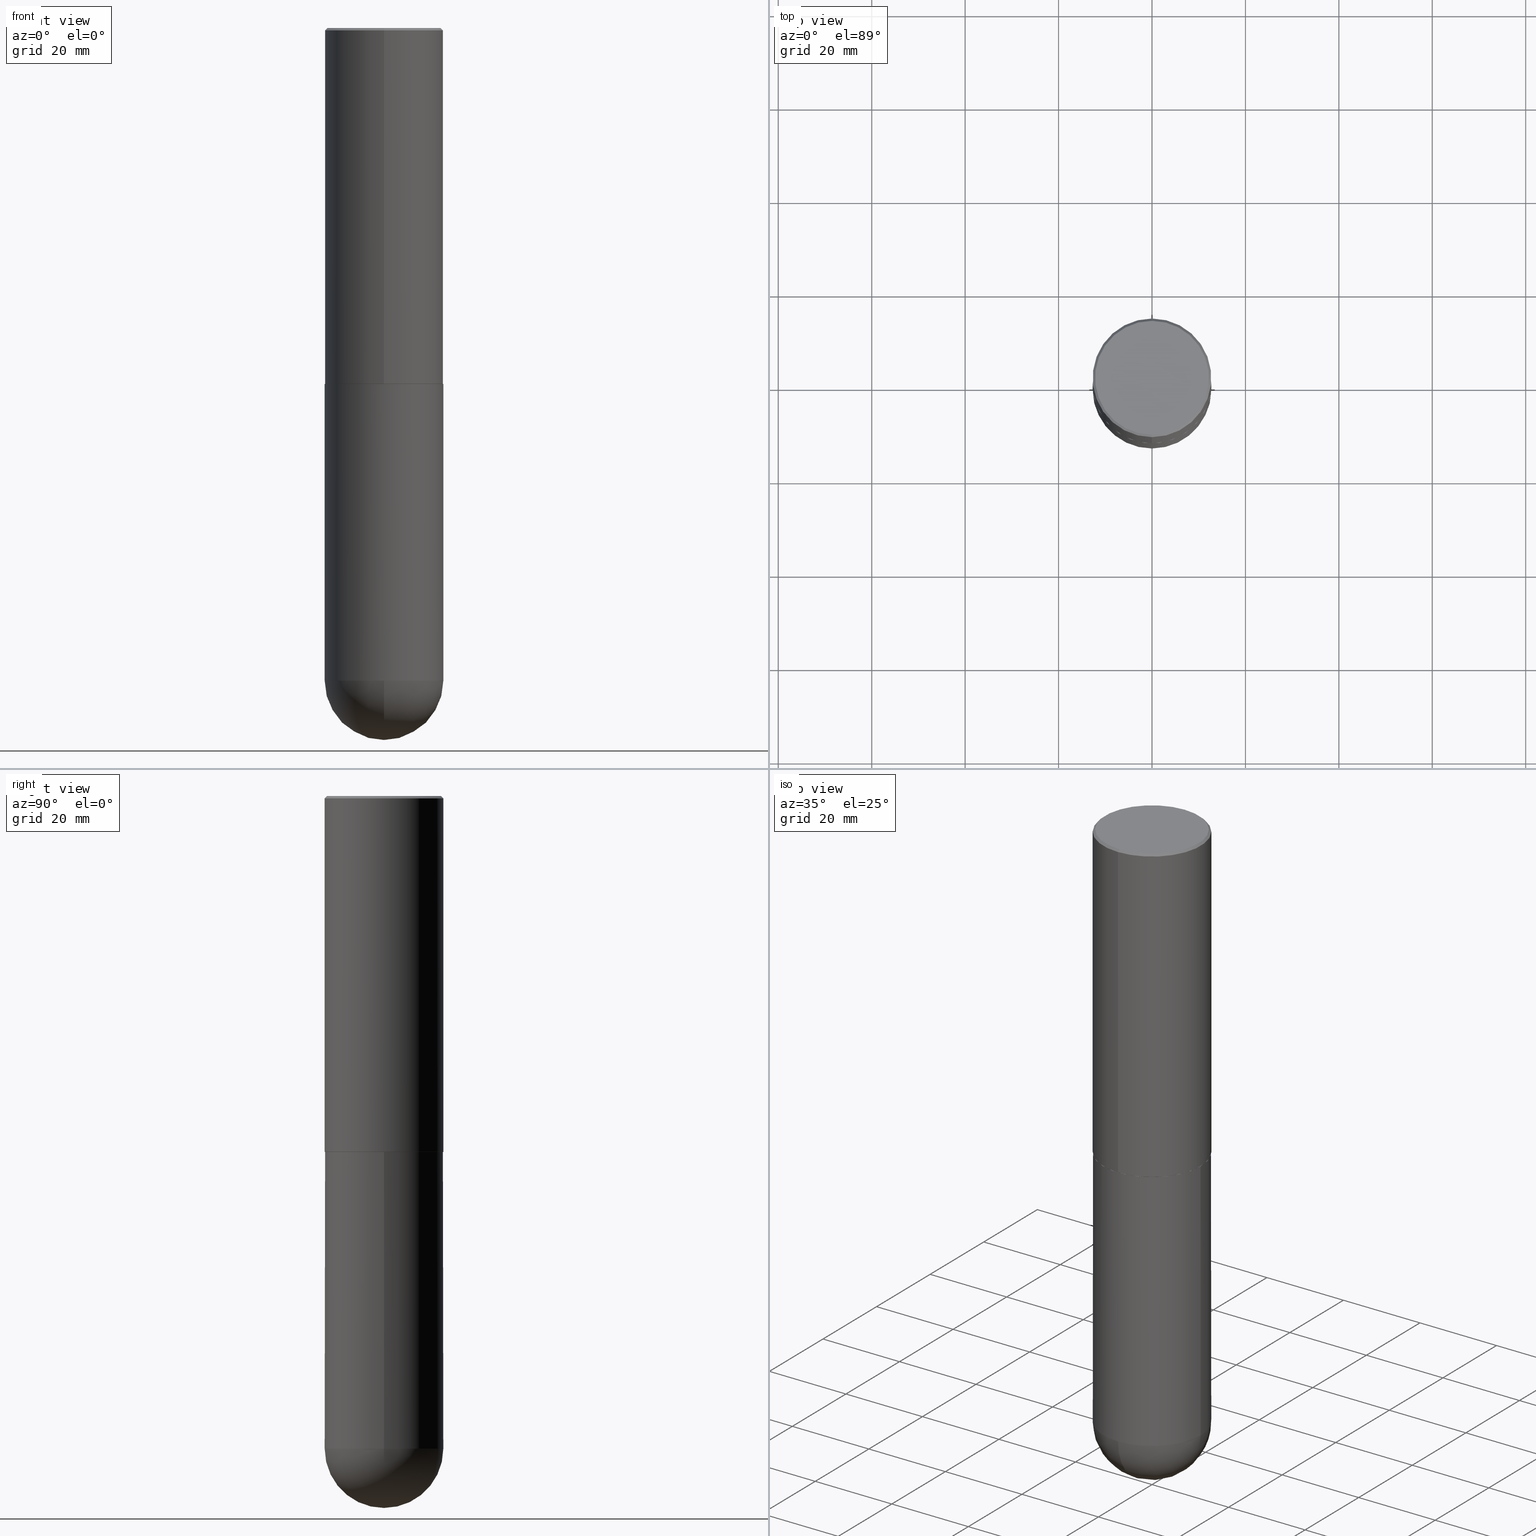
[diagram: canonical four-view strip — front | top / right | iso, engineering-drawing reading convention]
A machine part, canonical four-view strip (front | top / right | iso — engineering-drawing reading convention). The complete STEP part file that produces these views, byte-faithful:
ISO-10303-21;
HEADER;
FILE_DESCRIPTION (( 'STEP AP203' ),
    '1' );
FILE_NAME ('31927.STEP',
    '2024-02-21T17:16:12',
    ( '' ),
    ( '' ),
    'SwSTEP 2.0',
    'SolidWorks 2023',
    '' );
FILE_SCHEMA (( 'CONFIG_CONTROL_DESIGN' ));
ENDSEC;

DATA;
#1 = LINE ( 'NONE', #405, #382 ) ;
#2 = ADVANCED_FACE ( 'NONE', ( #101 ), #67, .F. ) ;
#3 = LINE ( 'NONE', #131, #105 ) ;
#4 = APPROVAL_STATUS ( 'not_yet_approved' ) ;
#5 = EDGE_LOOP ( 'NONE', ( #286, #284, #245, #44 ) ) ;
#6 = CIRCLE ( 'NONE', #272, 0.5000000000000005551 ) ;
#7 = AXIS2_PLACEMENT_3D ( 'NONE', #191, #132, #378 ) ;
#8 = APPROVAL_PERSON_ORGANIZATION ( #106, #149, #112 ) ;
#9 = VERTEX_POINT ( 'NONE', #296 ) ;
#10 = DIRECTION ( 'NONE',  ( -2.445468806185136597E-29, 3.491481338843145583E-15, 1.000000000000000000 ) ) ;
#11 = PRODUCT_DEFINITION ( 'UNKNOWN', '', #154, #244 ) ;
#12 = VERTEX_POINT ( 'NONE', #65 ) ;
#13 = VERTEX_POINT ( 'NONE', #290 ) ;
#14 = VERTEX_POINT ( 'NONE', #198 ) ;
#15 = ORIENTED_EDGE ( 'NONE', *, *, #150, .F. ) ;
#16 =( CONVERSION_BASED_UNIT ( 'INCH', #180 ) LENGTH_UNIT ( ) NAMED_UNIT ( #76 ) );
#17 = CC_DESIGN_PERSON_AND_ORGANIZATION_ASSIGNMENT ( #295, #409, ( #154 ) ) ;
#18 = EDGE_CURVE ( 'NONE', #9, #334, #151, .T. ) ;
#19 = CIRCLE ( 'NONE', #35, 0.5000000000000000000 ) ;
#20 = VECTOR ( 'NONE', #69, 39.37007874015748143 ) ;
#21 = LOCAL_TIME ( 12, 16, 12.00000000000000000, #212 ) ;
#22 = LINE ( 'NONE', #220, #216 ) ;
#23 = EDGE_CURVE ( 'NONE', #325, #38, #22, .T. ) ;
#24 = CARTESIAN_POINT ( 'NONE',  ( 3.545608251442972496E-15, 0.4989999999999895630, -3.000000000000002220 ) ) ;
#25 = DIRECTION ( 'NONE',  ( -2.445691460240369790E-29, 3.491162485563369808E-15, 1.000000000000000000 ) ) ;
#26 = AXIS2_PLACEMENT_3D ( 'NONE', #410, #123, #314 ) ;
#27 = DIRECTION ( 'NONE',  ( -2.445691460240369790E-29, 3.491162485563369808E-15, 1.000000000000000000 ) ) ;
#28 = EDGE_CURVE ( 'NONE', #176, #38, #289, .T. ) ;
#29 = APPROVAL_ROLE ( '' ) ;
#30 = APPROVAL ( #88, 'UNSPECIFIED' ) ;
#31 = CARTESIAN_POINT ( 'NONE',  ( 7.337074380721110490E-29, -1.047348745669011337E-14, -3.000000000000000888 ) ) ;
#32 = EDGE_CURVE ( 'NONE', #143, #239, #219, .T. ) ;
#33 = DIRECTION ( 'NONE',  ( -1.000000000000000000, 6.982962677686265922E-15, -4.883557194083112901E-29 ) ) ;
#34 = MANIFOLD_SOLID_BREP ( 'Body-Move/Copy2[2]', #45 ) ;
#35 = AXIS2_PLACEMENT_3D ( 'NONE', #225, #257, #381 ) ;
#36 =( GEOMETRIC_REPRESENTATION_CONTEXT ( 3 ) GLOBAL_UNCERTAINTY_ASSIGNED_CONTEXT ( ( #397 ) ) GLOBAL_UNIT_ASSIGNED_CONTEXT ( ( #16, #172, #337 ) ) REPRESENTATION_CONTEXT ( 'NONE', 'WORKASPACE' ) );
#37 = DIRECTION ( 'NONE',  ( -2.445691460240369790E-29, 3.491162485563369808E-15, 1.000000000000000000 ) ) ;
#38 = VERTEX_POINT ( 'NONE', #98 ) ;
#39 = CARTESIAN_POINT ( 'NONE',  ( 3.351822085289413464E-15, 0.4800000000000008149, -2.119759816828009615E-15 ) ) ;
#40 = ORIENTED_EDGE ( 'NONE', *, *, #79, .F. ) ;
#41 = CARTESIAN_POINT ( 'NONE',  ( 1.345007843401825128E-28, -1.920314736363730603E-14, -5.500000000000000888 ) ) ;
#42 = MECHANICAL_CONTEXT ( 'NONE', #350, 'mechanical' ) ;
#43 = PERSON ( 'UNSPECIFIED', 'UNSPECIFIED', 'UNSPECIFIED', ('UNSPECIFIED'), ('UNSPECIFIED'), ('UNSPECIFIED') ) ;
#44 = ORIENTED_EDGE ( 'NONE', *, *, #114, .F. ) ;
#45 = CLOSED_SHELL ( 'NONE', ( #327, #240, #97, #135, #336, #148, #2, #279 ) ) ;
#46 = CONICAL_SURFACE ( 'NONE', #317, 0.4989999999999999991, 0.7853981633974824739 ) ;
#47 = EDGE_CURVE ( 'NONE', #12, #13, #6, .T. ) ;
#48 = EDGE_LOOP ( 'NONE', ( #214, #306, #401, #400, #369 ) ) ;
#49 = ORIENTED_EDGE ( 'NONE', *, *, #396, .T. ) ;
#50 = DIRECTION ( 'NONE',  ( -2.445691460240369790E-29, 3.491162485563369808E-15, 1.000000000000000000 ) ) ;
#51 = ORIENTED_EDGE ( 'NONE', *, *, #47, .T. ) ;
#52 = CIRCLE ( 'NONE', #402, 0.5000000000000004441 ) ;
#53 = EDGE_CURVE ( 'NONE', #334, #38, #287, .T. ) ;
#54 = CC_DESIGN_DATE_AND_TIME_ASSIGNMENT ( #292, #311, ( #11 ) ) ;
#55 = CC_DESIGN_DATE_AND_TIME_ASSIGNMENT ( #364, #140, ( #63 ) ) ;
#56 = CARTESIAN_POINT ( 'NONE',  ( 1.311895865610436840E-28, -1.967732973177735475E-14, -5.500000000000000888 ) ) ;
#57 = DIRECTION ( 'NONE',  ( -7.105427357601000281E-15, -1.000000000000000000, 0.000000000000000000 ) ) ;
#58 = PERSON_AND_ORGANIZATION_ROLE ( 'creator' ) ;
#59 = DIRECTION ( 'NONE',  ( -1.000000000000000000, 7.105427357601001070E-15, -4.926315508542082329E-29 ) ) ;
#60 = FACE_OUTER_BOUND ( 'NONE', #113, .T. ) ;
#61 = CIRCLE ( 'NONE', #310, 0.5000000000000000000 ) ;
#62 = CARTESIAN_POINT ( 'NONE',  ( 7.334628689260870918E-29, -1.046999629420454738E-14, -2.999000000000000554 ) ) ;
#63 = SECURITY_CLASSIFICATION ( '', '', #391 ) ;
#64 = DIRECTION ( 'NONE',  ( 1.000000000000000000, -6.982962677686265922E-15, 4.883557194083112340E-29 ) ) ;
#65 = CARTESIAN_POINT ( 'NONE',  ( 1.436307221642642309E-28, -2.139245423122024710E-14, -6.000000000000001776 ) ) ;
#66 = CARTESIAN_POINT ( 'NONE',  ( 2.171782937390169934E-44, -3.100165021248426983E-30, -8.880036475151778487E-16 ) ) ;
#67 = PLANE ( 'NONE',  #181 ) ;
#68 = FACE_OUTER_BOUND ( 'NONE', #359, .T. ) ;
#69 = DIRECTION ( 'NONE',  ( 4.937700262164541731E-15, 0.7071067811865442421, -0.7071067811865507924 ) ) ;
#70 = DIRECTION ( 'NONE',  ( -2.445691460240369509E-29, 3.491162485563369808E-15, 1.000000000000000000 ) ) ;
#71 = AXIS2_PLACEMENT_3D ( 'NONE', #247, #50, #370 ) ;
#72 = DIRECTION ( 'NONE',  ( -2.445468806185136877E-29, 3.491481338843145188E-15, 1.000000000000000000 ) ) ;
#73 = COORDINATED_UNIVERSAL_TIME_OFFSET ( 5, 0, .BEHIND. ) ;
#74 = ORIENTED_EDGE ( 'NONE', *, *, #23, .T. ) ;
#75 = DIRECTION ( 'NONE',  ( -2.445691460240369790E-29, 3.491162485563369808E-15, 1.000000000000000000 ) ) ;
#76 = DIMENSIONAL_EXPONENTS ( 1.000000000000000000, 0.000000000000000000, 0.000000000000000000, 0.000000000000000000, 0.000000000000000000, 0.000000000000000000, 0.000000000000000000 ) ;
#77 = EDGE_LOOP ( 'NONE', ( #193, #49, #133, #185, #107 ) ) ;
#78 = CARTESIAN_POINT ( 'NONE',  ( 0.000000000000000000, 0.000000000000000000, 0.000000000000000000 ) ) ;
#79 = EDGE_CURVE ( 'NONE', #9, #325, #324, .T. ) ;
#80 = CARTESIAN_POINT ( 'NONE',  ( -0.5000000000000000000, -1.128608201128286947E-14, -3.000000000000000444 ) ) ;
#81 = CONICAL_SURFACE ( 'NONE', #283, 0.4989999999999999991, 0.7853981633974824739 ) ;
#82 = VERTEX_POINT ( 'NONE', #126 ) ;
#83 = VERTEX_POINT ( 'NONE', #299 ) ;
#84 = ORIENTED_EDGE ( 'NONE', *, *, #363, .T. ) ;
#85 = CIRCLE ( 'NONE', #338, 0.5000000000000000000 ) ;
#86 = CC_DESIGN_PERSON_AND_ORGANIZATION_ASSIGNMENT ( #221, #58, ( #11 ) ) ;
#87 = AXIS2_PLACEMENT_3D ( 'NONE', #129, #233, #253 ) ;
#88 = APPROVAL_STATUS ( 'not_yet_approved' ) ;
#89 = VECTOR ( 'NONE', #72, 39.37007874015748143 ) ;
#90 = CARTESIAN_POINT ( 'NONE',  ( 0.000000000000000000, 0.000000000000000000, 0.000000000000000000 ) ) ;
#91 = DIRECTION ( 'NONE',  ( -2.445468806185136597E-29, 3.491481338843145583E-15, 1.000000000000000000 ) ) ;
#92 = DIRECTION ( 'NONE',  ( 0.000000000000000000, 0.000000000000000000, 1.000000000000000000 ) ) ;
#93 = DATE_AND_TIME ( #339, #346 ) ;
#94 = AXIS2_PLACEMENT_3D ( 'NONE', #377, #153, #96 ) ;
#95 = AXIS2_PLACEMENT_3D ( 'NONE', #347, #267, #102 ) ;
#96 = DIRECTION ( 'NONE',  ( -6.982962677686265922E-15, -1.000000000000000000, 3.491643216902136408E-15 ) ) ;
#97 = ADVANCED_FACE ( 'NONE', ( #155 ), #307, .T. ) ;
#98 = CARTESIAN_POINT ( 'NONE',  ( -3.430248998885764992E-15, -0.5000000000000001110, -0.01999999999999835937 ) ) ;
#99 = APPROVAL_DATE_TIME ( #93, #30 ) ;
#100 = FACE_OUTER_BOUND ( 'NONE', #77, .T. ) ;
#101 = FACE_OUTER_BOUND ( 'NONE', #141, .T. ) ;
#102 = DIRECTION ( 'NONE',  ( -6.982962677686265922E-15, -1.000000000000000000, 3.284787166730577015E-15 ) ) ;
#103 = SPHERICAL_SURFACE ( 'NONE', #297, 0.5000000000000005551 ) ;
#104 = CARTESIAN_POINT ( 'NONE',  ( 1.345007843401825128E-28, -1.920314736363730603E-14, -5.500000000000000888 ) ) ;
#105 = VECTOR ( 'NONE', #268, 39.37007874015748143 ) ;
#106 = PERSON_AND_ORGANIZATION ( #43, #142 ) ;
#107 = ORIENTED_EDGE ( 'NONE', *, *, #150, .T. ) ;
#108 = PERSON_AND_ORGANIZATION ( #43, #142 ) ;
#109 = ORIENTED_EDGE ( 'NONE', *, *, #265, .F. ) ;
#110 = VECTOR ( 'NONE', #127, 39.37007874015748143 ) ;
#111 = AXIS2_PLACEMENT_3D ( 'NONE', #318, #37, #164 ) ;
#112 = APPROVAL_ROLE ( '' ) ;
#113 = EDGE_LOOP ( 'NONE', ( #309, #51, #281, #361 ) ) ;
#114 = EDGE_CURVE ( 'NONE', #215, #325, #1, .T. ) ;
#115 = ORIENTED_EDGE ( 'NONE', *, *, #130, .T. ) ;
#116 = ORIENTED_EDGE ( 'NONE', *, *, #323, .T. ) ;
#117 = CIRCLE ( 'NONE', #345, 0.4800000000000008149 ) ;
#118 = EDGE_CURVE ( 'NONE', #207, #14, #19, .T. ) ;
#119 = AXIS2_PLACEMENT_3D ( 'NONE', #388, #264, #230 ) ;
#120 = PRODUCT ( '31927', '31927', '', ( #42 ) ) ;
#121 = DIRECTION ( 'NONE',  ( -4.937700262164715281E-15, -0.7071067811865691111, 0.7071067811865257013 ) ) ;
#122 = ORIENTED_EDGE ( 'NONE', *, *, #18, .F. ) ;
#123 = DIRECTION ( 'NONE',  ( -2.445468806185136597E-29, 3.491481338843145583E-15, 1.000000000000000000 ) ) ;
#124 = EDGE_LOOP ( 'NONE', ( #179, #304, #404, #368 ) ) ;
#125 = DIRECTION ( 'NONE',  ( -6.982962677686265133E-15, -1.000000000000000000, 3.278217592397113101E-15 ) ) ;
#126 = CARTESIAN_POINT ( 'NONE',  ( 0.5000000000000000000, -1.833027702892651007E-14, -5.500000000000000888 ) ) ;
#127 = DIRECTION ( 'NONE',  ( -4.851104656540957964E-15, -0.7071067811865491270, -0.7071067811865459074 ) ) ;
#128 = FACE_OUTER_BOUND ( 'NONE', #394, .T. ) ;
#129 = CARTESIAN_POINT ( 'NONE',  ( 7.336406418555409790E-29, -1.047444401652943635E-14, -3.000000000000000444 ) ) ;
#130 = EDGE_CURVE ( 'NONE', #14, #207, #282, .T. ) ;
#131 = CARTESIAN_POINT ( 'NONE',  ( -0.5000000000000000000, 3.552713678800500929E-15, -2.459467545127452891E-29 ) ) ;
#132 = DIRECTION ( 'NONE',  ( 2.445691460240369790E-29, -3.491162485563369808E-15, -1.000000000000000000 ) ) ;
#133 = ORIENTED_EDGE ( 'NONE', *, *, #130, .F. ) ;
#134 = CONICAL_SURFACE ( 'NONE', #7, 0.5000000000000000000, 0.7853981633974471688 ) ;
#135 = ADVANCED_FACE ( 'NONE', ( #354 ), #134, .T. ) ;
#136 = ORIENTED_EDGE ( 'NONE', *, *, #168, .F. ) ;
#137 = FACE_OUTER_BOUND ( 'NONE', #348, .T. ) ;
#138 = ORIENTED_EDGE ( 'NONE', *, *, #18, .T. ) ;
#139 = DIRECTION ( 'NONE',  ( -2.445468806185136597E-29, 3.491481338843145583E-15, 1.000000000000000000 ) ) ;
#140 = DATE_TIME_ROLE ( 'classification_date' ) ;
#141 = EDGE_LOOP ( 'NONE', ( #303, #237 ) ) ;
#142 = ORGANIZATION ( 'UNSPECIFIED', 'UNSPECIFIED', '' ) ;
#143 = VERTEX_POINT ( 'NONE', #390 ) ;
#144 = PERSON_AND_ORGANIZATION ( #43, #142 ) ;
#145 = EDGE_LOOP ( 'NONE', ( #305, #329, #170, #258 ) ) ;
#146 = AXIS2_PLACEMENT_3D ( 'NONE', #62, #312, #411 ) ;
#147 = CIRCLE ( 'NONE', #182, 0.5000000000000000000 ) ;
#148 = ADVANCED_FACE ( 'NONE', ( #201 ), #81, .T. ) ;
#149 = APPROVAL ( #4, 'UNSPECIFIED' ) ;
#150 = EDGE_CURVE ( 'NONE', #82, #143, #61, .T. ) ;
#151 = LINE ( 'NONE', #352, #187 ) ;
#152 = PERSON_AND_ORGANIZATION_ROLE ( 'classification_officer' ) ;
#153 = DIRECTION ( 'NONE',  ( -2.445691460240369790E-29, 3.491162485563369808E-15, 1.000000000000000000 ) ) ;
#154 = PRODUCT_DEFINITION_FORMATION_WITH_SPECIFIED_SOURCE ( 'ANY', '', #120, .NOT_KNOWN. ) ;
#155 = FACE_OUTER_BOUND ( 'NONE', #124, .T. ) ;
#156 = CALENDAR_DATE ( 2024, 21, 2 ) ;
#157 = DIRECTION ( 'NONE',  ( -2.445691460240369790E-29, 3.491162485563369808E-15, 1.000000000000000000 ) ) ;
#158 = DIRECTION ( 'NONE',  ( 2.438088387897960049E-29, -3.491481338843145188E-15, -1.000000000000000000 ) ) ;
#159 = APPROVAL_DATE_TIME ( #376, #357 ) ;
#160 = CYLINDRICAL_SURFACE ( 'NONE', #26, 0.5000000000000000000 ) ;
#161 = DIRECTION ( 'NONE',  ( -6.982962677686265922E-15, -1.000000000000000000, 3.491162485563369808E-15 ) ) ;
#162 = CC_DESIGN_SECURITY_CLASSIFICATION ( #63, ( #154 ) ) ;
#163 = APPROVAL_DATE_TIME ( #203, #149 ) ;
#164 = DIRECTION ( 'NONE',  ( -6.982962677686265922E-15, -1.000000000000000000, 3.491643216902136408E-15 ) ) ;
#165 = CALENDAR_DATE ( 2024, 21, 2 ) ;
#166 = ORIENTED_EDGE ( 'NONE', *, *, #79, .T. ) ;
#167 = CARTESIAN_POINT ( 'NONE',  ( -3.491481338843062752E-15, -0.5000000000000108802, -2.998999999999998778 ) ) ;
#168 = EDGE_CURVE ( 'NONE', #13, #82, #147, .T. ) ;
#169 = EDGE_LOOP ( 'NONE', ( #109, #84, #275, #40 ) ) ;
#170 = ORIENTED_EDGE ( 'NONE', *, *, #371, .T. ) ;
#171 = DIRECTION ( 'NONE',  ( 1.000000000000000000, -6.982962677686270655E-15, 0.000000000000000000 ) ) ;
#172 =( NAMED_UNIT ( * ) PLANE_ANGLE_UNIT ( ) SI_UNIT ( $, .RADIAN. ) );
#173 = EDGE_LOOP ( 'NONE', ( #116, #278 ) ) ;
#174 = FACE_OUTER_BOUND ( 'NONE', #48, .T. ) ;
#175 = MANIFOLD_SOLID_BREP ( 'Body-Move/Copy2[1]', #392 ) ;
#176 = VERTEX_POINT ( 'NONE', #285 ) ;
#177 = PRODUCT_RELATED_PRODUCT_CATEGORY ( 'detail', '', ( #120 ) ) ;
#178 = LOCAL_TIME ( 12, 16, 12.00000000000000000, #342 ) ;
#179 = ORIENTED_EDGE ( 'NONE', *, *, #218, .F. ) ;
#180 = LENGTH_MEASURE_WITH_UNIT ( LENGTH_MEASURE( 0.02539999999999999897 ), #246 );
#181 = AXIS2_PLACEMENT_3D ( 'NONE', #389, #70, #188 ) ;
#182 = AXIS2_PLACEMENT_3D ( 'NONE', #41, #139, #171 ) ;
#183 = LINE ( 'NONE', #24, #217 ) ;
#184 = DIRECTION ( 'NONE',  ( 1.000000000000000000, 0.000000000000000000, 0.000000000000000000 ) ) ;
#185 = ORIENTED_EDGE ( 'NONE', *, *, #277, .F. ) ;
#186 = LINE ( 'NONE', #355, #89 ) ;
#187 = VECTOR ( 'NONE', #226, 39.37007874015748143 ) ;
#188 = DIRECTION ( 'NONE',  ( -6.982962677686265922E-15, -1.000000000000000000, 3.491162485563369808E-15 ) ) ;
#189 = CC_DESIGN_APPROVAL ( #30, ( #154 ) ) ;
#190 = CARTESIAN_POINT ( 'NONE',  ( 1.311895865610436840E-28, -1.967732973177735475E-14, -5.500000000000000888 ) ) ;
#191 = CARTESIAN_POINT ( 'NONE',  ( 4.891382920480766589E-31, -6.982324971126776298E-17, -0.02000000000000010797 ) ) ;
#192 = ADVANCED_BREP_SHAPE_REPRESENTATION ( '31927', ( #175, #34, #200 ), #36 ) ;
#193 = ORIENTED_EDGE ( 'NONE', *, *, #32, .T. ) ;
#194 = PRODUCT_DEFINITION_SHAPE ( 'NONE', 'NONE',  #11 ) ;
#195 = DIRECTION ( 'NONE',  ( 6.982962677686265922E-15, 1.000000000000000000, 0.000000000000000000 ) ) ;
#196 = CARTESIAN_POINT ( 'NONE',  ( 7.334628689260870918E-29, -1.046999629420454738E-14, -2.999000000000000554 ) ) ;
#197 = CARTESIAN_POINT ( 'NONE',  ( 0.000000000000000000, 0.000000000000000000, 0.000000000000000000 ) ) ;
#198 = CARTESIAN_POINT ( 'NONE',  ( 0.5000000000000000000, -1.396592535537257129E-14, -3.000000000000000444 ) ) ;
#199 = DIRECTION ( 'NONE',  ( 1.000000000000000000, -6.982962677686270655E-15, 0.000000000000000000 ) ) ;
#200 = AXIS2_PLACEMENT_3D ( 'NONE', #90, #92, #184 ) ;
#201 = FACE_OUTER_BOUND ( 'NONE', #169, .T. ) ;
#202 = FACE_OUTER_BOUND ( 'NONE', #173, .T. ) ;
#203 = DATE_AND_TIME ( #280, #249 ) ;
#204 = VERTEX_POINT ( 'NONE', #206 ) ;
#205 = CARTESIAN_POINT ( 'NONE',  ( 3.491481338843133355E-15, 0.4999999999999999445, -0.02000000000000185310 ) ) ;
#206 = CARTESIAN_POINT ( 'NONE',  ( 3.421651712066273607E-15, 0.4800000000000008149, -2.563761640585598047E-15 ) ) ;
#207 = VERTEX_POINT ( 'NONE', #80 ) ;
#208 = CARTESIAN_POINT ( 'NONE',  ( -3.484498376165373188E-15, -0.4990000000000104352, -2.999999999999999112 ) ) ;
#209 = ADVANCED_FACE ( 'NONE', ( #174 ), #333, .T. ) ;
#210 = CC_DESIGN_PERSON_AND_ORGANIZATION_ASSIGNMENT ( #262, #385, ( #154 ) ) ;
#211 = CIRCLE ( 'NONE', #288, 0.4989999999999999991 ) ;
#212 = COORDINATED_UNIVERSAL_TIME_OFFSET ( 5, 0, .BEHIND. ) ;
#213 = ORIENTED_EDGE ( 'NONE', *, *, #53, .F. ) ;
#214 = ORIENTED_EDGE ( 'NONE', *, *, #396, .F. ) ;
#215 = VERTEX_POINT ( 'NONE', #208 ) ;
#216 = VECTOR ( 'NONE', #25, 39.37007874015748143 ) ;
#217 = VECTOR ( 'NONE', #222, 39.37007874015748854 ) ;
#218 = EDGE_CURVE ( 'NONE', #176, #204, #252, .T. ) ;
#219 = CIRCLE ( 'NONE', #251, 0.5000000000000000000 ) ;
#220 = CARTESIAN_POINT ( 'NONE',  ( -3.491481338843134539E-15, -0.5000000000000002220, 1.745581242781685693E-15 ) ) ;
#221 = PERSON_AND_ORGANIZATION ( #43, #142 ) ;
#222 = DIRECTION ( 'NONE',  ( 5.024295867788231995E-15, 0.7071067811865739960, 0.7071067811865208164 ) ) ;
#223 = COORDINATED_UNIVERSAL_TIME_OFFSET ( 5, 0, .BEHIND. ) ;
#224 = DIRECTION ( 'NONE',  ( 6.982962677686265922E-15, 1.000000000000000000, -4.370956789862816416E-15 ) ) ;
#225 = CARTESIAN_POINT ( 'NONE',  ( 7.336406418555409790E-29, -1.047444401652943635E-14, -3.000000000000000444 ) ) ;
#226 = DIRECTION ( 'NONE',  ( -2.445691460240369790E-29, 3.491162485563369808E-15, 1.000000000000000000 ) ) ;
#227 = AXIS2_PLACEMENT_3D ( 'NONE', #256, #33, #224 ) ;
#228 = CYLINDRICAL_SURFACE ( 'NONE', #326, 0.5000000000000002220 ) ;
#229 = DIRECTION ( 'NONE',  ( 6.982962677686265922E-15, 1.000000000000000000, -4.370956789862816416E-15 ) ) ;
#230 = DIRECTION ( 'NONE',  ( 6.982962677686265922E-15, 1.000000000000000000, -3.491643216902136408E-15 ) ) ;
#231 = ADVANCED_FACE ( 'NONE', ( #137 ), #322, .F. ) ;
#232 = LINE ( 'NONE', #353, #20 ) ;
#233 = DIRECTION ( 'NONE',  ( -2.445468806185136597E-29, 3.491481338843145583E-15, 1.000000000000000000 ) ) ;
#234 = APPLICATION_PROTOCOL_DEFINITION ( 'international standard', 'config_control_design', 1994, #350 ) ;
#235 = DIRECTION ( 'NONE',  ( 2.445691460240369509E-29, -3.491162485563369808E-15, -1.000000000000000000 ) ) ;
#236 = AXIS2_PLACEMENT_3D ( 'NONE', #78, #10, #274 ) ;
#237 = ORIENTED_EDGE ( 'NONE', *, *, #363, .F. ) ;
#238 = APPLICATION_PROTOCOL_DEFINITION ( 'international standard', 'config_control_design', 1994, #362 ) ;
#239 = VERTEX_POINT ( 'NONE', #341 ) ;
#240 = ADVANCED_FACE ( 'NONE', ( #68 ), #254, .T. ) ;
#241 = ORIENTED_EDGE ( 'NONE', *, *, #118, .T. ) ;
#242 = AXIS2_PLACEMENT_3D ( 'NONE', #39, #235, #386 ) ;
#243 = CC_DESIGN_APPROVAL ( #149, ( #63 ) ) ;
#244 = DESIGN_CONTEXT ( 'detailed design', #362, 'design' ) ;
#245 = ORIENTED_EDGE ( 'NONE', *, *, #332, .F. ) ;
#246 =( LENGTH_UNIT ( ) NAMED_UNIT ( * ) SI_UNIT ( $, .METRE. ) );
#247 = CARTESIAN_POINT ( 'NONE',  ( 2.171782937390169934E-44, -3.100165021248426983E-30, -8.880036475151778487E-16 ) ) ;
#248 = EDGE_CURVE ( 'NONE', #12, #143, #412, .T. ) ;
#249 = LOCAL_TIME ( 12, 16, 12.00000000000000000, #73 ) ;
#250 = APPROVAL_STATUS ( 'not_yet_approved' ) ;
#251 = AXIS2_PLACEMENT_3D ( 'NONE', #266, #91, #260 ) ;
#252 = CIRCLE ( 'NONE', #71, 0.4800000000000008149 ) ;
#253 = DIRECTION ( 'NONE',  ( 1.000000000000000000, -6.982962677686266711E-15, 0.000000000000000000 ) ) ;
#254 = CYLINDRICAL_SURFACE ( 'NONE', #383, 0.5000000000000002220 ) ;
#255 = APPROVAL_ROLE ( '' ) ;
#256 = CARTESIAN_POINT ( 'NONE',  ( 1.311895865610436840E-28, -1.967732973177735475E-14, -5.500000000000000888 ) ) ;
#257 = DIRECTION ( 'NONE',  ( -2.445468806185136597E-29, 3.491481338843145583E-15, 1.000000000000000000 ) ) ;
#258 = ORIENTED_EDGE ( 'NONE', *, *, #53, .T. ) ;
#259 = DIRECTION ( 'NONE',  ( -1.000000000000000000, 6.982962677686265922E-15, -4.876176775795935793E-29 ) ) ;
#260 = DIRECTION ( 'NONE',  ( 1.000000000000000000, -6.982962677686270655E-15, 0.000000000000000000 ) ) ;
#261 = CIRCLE ( 'NONE', #111, 0.5000000000000000000 ) ;
#262 = PERSON_AND_ORGANIZATION ( #43, #142 ) ;
#263 = DIRECTION ( 'NONE',  ( -2.445691460240369790E-29, 3.491162485563369808E-15, 1.000000000000000000 ) ) ;
#264 = DIRECTION ( 'NONE',  ( 2.445691460240369790E-29, -3.491162485563369808E-15, -1.000000000000000000 ) ) ;
#265 = EDGE_CURVE ( 'NONE', #83, #9, #183, .T. ) ;
#266 = CARTESIAN_POINT ( 'NONE',  ( 1.345007843401825128E-28, -1.920314736363730603E-14, -5.500000000000000888 ) ) ;
#267 = DIRECTION ( 'NONE',  ( -2.445691460240369790E-29, 3.491162485563369808E-15, 1.000000000000000000 ) ) ;
#268 = DIRECTION ( 'NONE',  ( -2.445468806185136877E-29, 3.491481338843145188E-15, 1.000000000000000000 ) ) ;
#269 = DIRECTION ( 'NONE',  ( -2.445691460240369790E-29, 3.491162485563369808E-15, 1.000000000000000000 ) ) ;
#270 = ORIENTED_EDGE ( 'NONE', *, *, #332, .T. ) ;
#271 = FACE_OUTER_BOUND ( 'NONE', #5, .T. ) ;
#272 = AXIS2_PLACEMENT_3D ( 'NONE', #340, #59, #57 ) ;
#273 = CIRCLE ( 'NONE', #95, 0.4989999999999999991 ) ;
#274 = DIRECTION ( 'NONE',  ( 1.000000000000000000, -6.982962677686266711E-15, 4.876176775795935793E-29 ) ) ;
#275 = ORIENTED_EDGE ( 'NONE', *, *, #114, .T. ) ;
#276 = CARTESIAN_POINT ( 'NONE',  ( 3.491481338843206325E-15, 0.4999999999999895639, -3.000000000000001332 ) ) ;
#277 = EDGE_CURVE ( 'NONE', #82, #14, #186, .T. ) ;
#278 = ORIENTED_EDGE ( 'NONE', *, *, #218, .T. ) ;
#279 = ADVANCED_FACE ( 'NONE', ( #202 ), #320, .F. ) ;
#280 = CALENDAR_DATE ( 2024, 21, 2 ) ;
#281 = ORIENTED_EDGE ( 'NONE', *, *, #372, .F. ) ;
#282 = CIRCLE ( 'NONE', #87, 0.5000000000000000000 ) ;
#283 = AXIS2_PLACEMENT_3D ( 'NONE', #319, #269, #344 ) ;
#284 = ORIENTED_EDGE ( 'NONE', *, *, #265, .T. ) ;
#285 = CARTESIAN_POINT ( 'NONE',  ( -3.361644018908052422E-15, -0.4800000000000008149, 7.877543455552426451E-16 ) ) ;
#286 = ORIENTED_EDGE ( 'NONE', *, *, #367, .T. ) ;
#287 = CIRCLE ( 'NONE', #94, 0.5000000000000000000 ) ;
#288 = AXIS2_PLACEMENT_3D ( 'NONE', #298, #294, #387 ) ;
#289 = LINE ( 'NONE', #408, #110 ) ;
#290 = CARTESIAN_POINT ( 'NONE',  ( -3.552713678800369978E-15, -0.5000000000000196509, -5.499999999999999112 ) ) ;
#291 = CALENDAR_DATE ( 2024, 21, 2 ) ;
#292 = DATE_AND_TIME ( #156, #178 ) ;
#293 = CC_DESIGN_PERSON_AND_ORGANIZATION_ASSIGNMENT ( #144, #152, ( #63 ) ) ;
#294 = DIRECTION ( 'NONE',  ( -2.445691460240369790E-29, 3.491162485563369808E-15, 1.000000000000000000 ) ) ;
#295 = PERSON_AND_ORGANIZATION ( #43, #142 ) ;
#296 = CARTESIAN_POINT ( 'NONE',  ( 3.552713678800539584E-15, 0.4999999999999900080, -2.999000000000001886 ) ) ;
#297 = AXIS2_PLACEMENT_3D ( 'NONE', #190, #380, #229 ) ;
#298 = CARTESIAN_POINT ( 'NONE',  ( 7.337074380721110490E-29, -1.047348745669011337E-14, -3.000000000000000888 ) ) ;
#299 = CARTESIAN_POINT ( 'NONE',  ( 3.549160965121774973E-15, 0.4989999999999895630, -3.000000000000002220 ) ) ;
#300 = CARTESIAN_POINT ( 'NONE',  ( 1.345007843401825128E-28, -1.920314736363730603E-14, -5.500000000000000888 ) ) ;
#301 = PERSON_AND_ORGANIZATION_ROLE ( 'design_owner' ) ;
#302 = ADVANCED_FACE ( 'NONE', ( #128 ), #103, .T. ) ;
#303 = ORIENTED_EDGE ( 'NONE', *, *, #367, .F. ) ;
#304 = ORIENTED_EDGE ( 'NONE', *, *, #28, .T. ) ;
#305 = ORIENTED_EDGE ( 'NONE', *, *, #28, .F. ) ;
#306 = ORIENTED_EDGE ( 'NONE', *, *, #372, .T. ) ;
#307 = CONICAL_SURFACE ( 'NONE', #119, 0.5000000000000000000, 0.7853981633974471688 ) ;
#308 = LOCAL_TIME ( 12, 16, 12.00000000000000000, #223 ) ;
#309 = ORIENTED_EDGE ( 'NONE', *, *, #248, .F. ) ;
#310 = AXIS2_PLACEMENT_3D ( 'NONE', #104, #313, #360 ) ;
#311 = DATE_TIME_ROLE ( 'creation_date' ) ;
#312 = DIRECTION ( 'NONE',  ( -2.445691460240369790E-29, 3.491162485563369808E-15, 1.000000000000000000 ) ) ;
#313 = DIRECTION ( 'NONE',  ( -2.445468806185136597E-29, 3.491481338843145583E-15, 1.000000000000000000 ) ) ;
#314 = DIRECTION ( 'NONE',  ( 1.000000000000000000, -6.982962677686266711E-15, 4.876176775795935793E-29 ) ) ;
#315 = ORIENTED_EDGE ( 'NONE', *, *, #23, .F. ) ;
#316 = CARTESIAN_POINT ( 'NONE',  ( 0.000000000000000000, 0.000000000000000000, 0.000000000000000000 ) ) ;
#317 = AXIS2_PLACEMENT_3D ( 'NONE', #31, #263, #395 ) ;
#318 = CARTESIAN_POINT ( 'NONE',  ( 4.891382920480766589E-31, -6.982324971126776298E-17, -0.02000000000000010797 ) ) ;
#319 = CARTESIAN_POINT ( 'NONE',  ( 7.337074380721110490E-29, -1.047348745669011337E-14, -3.000000000000000888 ) ) ;
#320 = PLANE ( 'NONE',  #242 ) ;
#321 = SPHERICAL_SURFACE ( 'NONE', #227, 0.5000000000000005551 ) ;
#322 = PLANE ( 'NONE',  #366 ) ;
#323 = EDGE_CURVE ( 'NONE', #204, #176, #117, .T. ) ;
#324 = CIRCLE ( 'NONE', #146, 0.5000000000000004441 ) ;
#325 = VERTEX_POINT ( 'NONE', #167 ) ;
#326 = AXIS2_PLACEMENT_3D ( 'NONE', #316, #27, #161 ) ;
#327 = ADVANCED_FACE ( 'NONE', ( #271 ), #46, .T. ) ;
#328 = ADVANCED_FACE ( 'NONE', ( #60 ), #321, .T. ) ;
#329 = ORIENTED_EDGE ( 'NONE', *, *, #323, .F. ) ;
#330 = ADVANCED_FACE ( 'NONE', ( #100 ), #160, .T. ) ;
#331 = EDGE_LOOP ( 'NONE', ( #122, #166, #74, #213 ) ) ;
#332 = EDGE_CURVE ( 'NONE', #325, #9, #52, .T. ) ;
#333 = CYLINDRICAL_SURFACE ( 'NONE', #236, 0.5000000000000000000 ) ;
#334 = VERTEX_POINT ( 'NONE', #205 ) ;
#335 = APPROVAL_PERSON_ORGANIZATION ( #108, #357, #29 ) ;
#336 = ADVANCED_FACE ( 'NONE', ( #343 ), #228, .T. ) ;
#337 =( NAMED_UNIT ( * ) SI_UNIT ( $, .STERADIAN. ) SOLID_ANGLE_UNIT ( ) );
#338 = AXIS2_PLACEMENT_3D ( 'NONE', #300, #358, #199 ) ;
#339 = CALENDAR_DATE ( 2024, 21, 2 ) ;
#340 = CARTESIAN_POINT ( 'NONE',  ( 1.311895865610436840E-28, -1.967732973177735475E-14, -5.500000000000000888 ) ) ;
#341 = CARTESIAN_POINT ( 'NONE',  ( -0.5000000000000000000, -1.128608201128287263E-14, -5.500000000000000888 ) ) ;
#342 = COORDINATED_UNIVERSAL_TIME_OFFSET ( 5, 0, .BEHIND. ) ;
#343 = FACE_OUTER_BOUND ( 'NONE', #331, .T. ) ;
#344 = DIRECTION ( 'NONE',  ( -6.982962677686265922E-15, -1.000000000000000000, 3.284787166730577015E-15 ) ) ;
#345 = AXIS2_PLACEMENT_3D ( 'NONE', #66, #157, #407 ) ;
#346 = LOCAL_TIME ( 12, 16, 12.00000000000000000, #379 ) ;
#347 = CARTESIAN_POINT ( 'NONE',  ( 7.337074380721110490E-29, -1.047348745669011337E-14, -3.000000000000000888 ) ) ;
#348 = EDGE_LOOP ( 'NONE', ( #115, #241 ) ) ;
#349 = DIRECTION ( 'NONE',  ( -6.982962677686265922E-15, -1.000000000000000000, 3.491162485563369808E-15 ) ) ;
#350 = APPLICATION_CONTEXT ( 'configuration controlled 3d designs of mechanical parts and assemblies' ) ;
#351 = PERSON_AND_ORGANIZATION ( #43, #142 ) ;
#352 = CARTESIAN_POINT ( 'NONE',  ( 3.552713678800501718E-15, 0.5000000000000002220, -1.745581242781685693E-15 ) ) ;
#353 = CARTESIAN_POINT ( 'NONE',  ( 3.491481338843133355E-15, 0.4999999999999999445, -0.02000000000000185310 ) ) ;
#354 = FACE_OUTER_BOUND ( 'NONE', #145, .T. ) ;
#355 = CARTESIAN_POINT ( 'NONE',  ( 0.5000000000000000000, -3.491481338843133355E-15, 2.438088387897967896E-29 ) ) ;
#356 = CC_DESIGN_APPROVAL ( #357, ( #11 ) ) ;
#357 = APPROVAL ( #250, 'UNSPECIFIED' ) ;
#358 = DIRECTION ( 'NONE',  ( -2.445468806185136597E-29, 3.491481338843145583E-15, 1.000000000000000000 ) ) ;
#359 = EDGE_LOOP ( 'NONE', ( #270, #138, #365, #315 ) ) ;
#360 = DIRECTION ( 'NONE',  ( 1.000000000000000000, -6.982962677686270655E-15, 0.000000000000000000 ) ) ;
#361 = ORIENTED_EDGE ( 'NONE', *, *, #32, .F. ) ;
#362 = APPLICATION_CONTEXT ( 'configuration controlled 3d designs of mechanical parts and assemblies' ) ;
#363 = EDGE_CURVE ( 'NONE', #83, #215, #211, .T. ) ;
#364 = DATE_AND_TIME ( #165, #21 ) ;
#365 = ORIENTED_EDGE ( 'NONE', *, *, #375, .F. ) ;
#366 = AXIS2_PLACEMENT_3D ( 'NONE', #276, #158, #259 ) ;
#367 = EDGE_CURVE ( 'NONE', #215, #83, #273, .T. ) ;
#368 = ORIENTED_EDGE ( 'NONE', *, *, #371, .F. ) ;
#369 = ORIENTED_EDGE ( 'NONE', *, *, #118, .F. ) ;
#370 = DIRECTION ( 'NONE',  ( -6.982962677686265922E-15, -1.000000000000000000, 3.491162485563369808E-15 ) ) ;
#371 = EDGE_CURVE ( 'NONE', #204, #334, #232, .T. ) ;
#372 = EDGE_CURVE ( 'NONE', #239, #13, #85, .T. ) ;
#373 = AXIS2_PLACEMENT_3D ( 'NONE', #56, #64, #195 ) ;
#374 = CC_DESIGN_PERSON_AND_ORGANIZATION_ASSIGNMENT ( #351, #301, ( #120 ) ) ;
#375 = EDGE_CURVE ( 'NONE', #38, #334, #261, .T. ) ;
#376 = DATE_AND_TIME ( #291, #308 ) ;
#377 = CARTESIAN_POINT ( 'NONE',  ( 4.891382920480766589E-31, -6.982324971126776298E-17, -0.02000000000000010797 ) ) ;
#378 = DIRECTION ( 'NONE',  ( 6.982962677686265922E-15, 1.000000000000000000, -3.491643216902136408E-15 ) ) ;
#379 = COORDINATED_UNIVERSAL_TIME_OFFSET ( 5, 0, .BEHIND. ) ;
#380 = DIRECTION ( 'NONE',  ( -1.000000000000000000, 6.982962677686265922E-15, -4.883557194083112901E-29 ) ) ;
#381 = DIRECTION ( 'NONE',  ( 1.000000000000000000, -6.982962677686266711E-15, 0.000000000000000000 ) ) ;
#382 = VECTOR ( 'NONE', #121, 39.37007874015748854 ) ;
#383 = AXIS2_PLACEMENT_3D ( 'NONE', #197, #384, #349 ) ;
#384 = DIRECTION ( 'NONE',  ( -2.445691460240369790E-29, 3.491162485563369808E-15, 1.000000000000000000 ) ) ;
#385 = PERSON_AND_ORGANIZATION_ROLE ( 'design_supplier' ) ;
#386 = DIRECTION ( 'NONE',  ( 6.982962677686265922E-15, 1.000000000000000000, -3.491162485563369808E-15 ) ) ;
#387 = DIRECTION ( 'NONE',  ( -6.982962677686265922E-15, -1.000000000000000000, 3.284787166730577015E-15 ) ) ;
#388 = CARTESIAN_POINT ( 'NONE',  ( 4.891382920480766589E-31, -6.982324971126776298E-17, -0.02000000000000010797 ) ) ;
#389 = CARTESIAN_POINT ( 'NONE',  ( 7.337074380721109369E-29, -1.047348745669011179E-14, -3.000000000000000444 ) ) ;
#390 = CARTESIAN_POINT ( 'NONE',  ( 3.491481338843267462E-15, 0.4999999999999808487, -5.500000000000002665 ) ) ;
#391 = SECURITY_CLASSIFICATION_LEVEL ( 'unclassified' ) ;
#392 = CLOSED_SHELL ( 'NONE', ( #330, #328, #302, #231, #209 ) ) ;
#393 = APPROVAL_PERSON_ORGANIZATION ( #406, #30, #255 ) ;
#394 = EDGE_LOOP ( 'NONE', ( #399, #403, #15, #136 ) ) ;
#395 = DIRECTION ( 'NONE',  ( -6.982962677686265922E-15, -1.000000000000000000, 3.284787166730577015E-15 ) ) ;
#396 = EDGE_CURVE ( 'NONE', #239, #207, #3, .T. ) ;
#397 = UNCERTAINTY_MEASURE_WITH_UNIT (LENGTH_MEASURE( 1.000000000000000082E-05 ), #16, 'distance_accuracy_value', 'NONE');
#398 = SHAPE_DEFINITION_REPRESENTATION ( #194, #192 ) ;
#399 = ORIENTED_EDGE ( 'NONE', *, *, #47, .F. ) ;
#400 = ORIENTED_EDGE ( 'NONE', *, *, #277, .T. ) ;
#401 = ORIENTED_EDGE ( 'NONE', *, *, #168, .T. ) ;
#402 = AXIS2_PLACEMENT_3D ( 'NONE', #196, #75, #125 ) ;
#403 = ORIENTED_EDGE ( 'NONE', *, *, #248, .T. ) ;
#404 = ORIENTED_EDGE ( 'NONE', *, *, #375, .T. ) ;
#405 = CARTESIAN_POINT ( 'NONE',  ( -3.484498376165373188E-15, -0.4990000000000104352, -2.999999999999999112 ) ) ;
#406 = PERSON_AND_ORGANIZATION ( #43, #142 ) ;
#407 = DIRECTION ( 'NONE',  ( -6.982962677686265922E-15, -1.000000000000000000, 3.491162485563369808E-15 ) ) ;
#408 = CARTESIAN_POINT ( 'NONE',  ( -3.430248998885764992E-15, -0.5000000000000001110, -0.01999999999999835937 ) ) ;
#409 = PERSON_AND_ORGANIZATION_ROLE ( 'creator' ) ;
#410 = CARTESIAN_POINT ( 'NONE',  ( 0.000000000000000000, 0.000000000000000000, 0.000000000000000000 ) ) ;
#411 = DIRECTION ( 'NONE',  ( -6.982962677686265133E-15, -1.000000000000000000, 3.278217592397113101E-15 ) ) ;
#412 = CIRCLE ( 'NONE', #373, 0.5000000000000005551 ) ;
ENDSEC;
END-ISO-10303-21;
